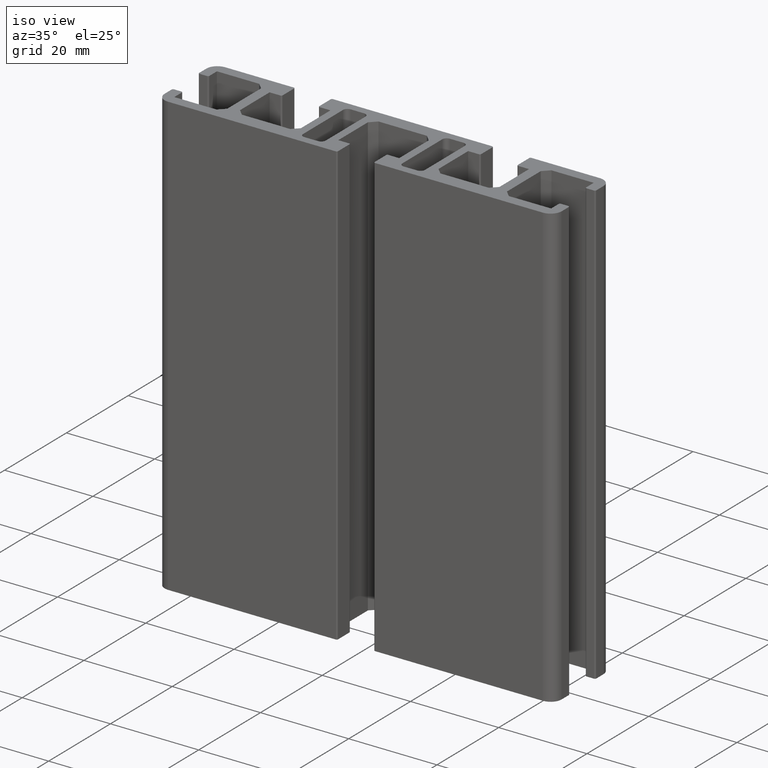
[diagram: clean part render]
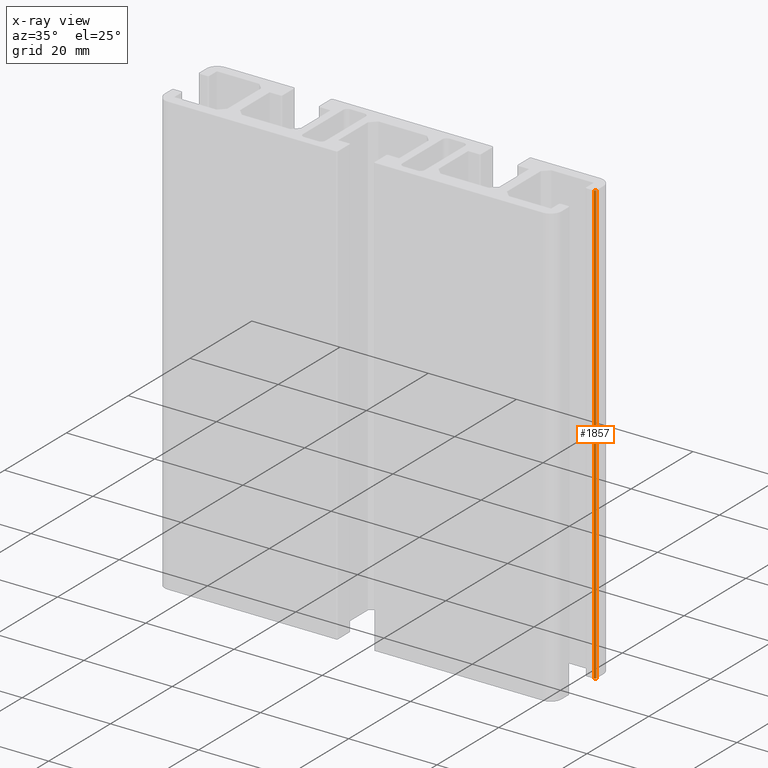
[diagram: x-ray — body ghosted, one internal face saturated and labeled with its STEP entity id]
A machine part, iso view, then the same camera in x-ray: the body is ghosted and one INTERNAL B-rep face — a face not visible from any outside direction — is saturated and labeled: STEP entity #1857.
In plain terms, the highlighted cylindrical surface (edge-blend (fillet) strip) has radius 0.3 mm, axis along (0, 0, 1).
Its self-contained STEP definition (entity closure, byte-faithful):
#95=FACE_OUTER_BOUND('',#191,.T.);
#191=EDGE_LOOP('',(#1297,#1298,#1299,#1300));
#305=LINE('',#2718,#523);
#306=LINE('',#2724,#524);
#523=VECTOR('',#2175,100.);
#524=VECTOR('',#2182,100.);
#725=CIRCLE('',#1966,0.299999999999391);
#726=CIRCLE('',#1967,0.299999999999391);
#803=VERTEX_POINT('',#2714);
#804=VERTEX_POINT('',#2716);
#805=VERTEX_POINT('',#2720);
#806=VERTEX_POINT('',#2722);
#1003=EDGE_CURVE('',#804,#803,#305,.T.);
#1004=EDGE_CURVE('',#803,#805,#725,.T.);
#1005=EDGE_CURVE('',#806,#804,#726,.T.);
#1006=EDGE_CURVE('',#805,#806,#306,.T.);
#1297=ORIENTED_EDGE('',*,*,#1004,.F.);
#1298=ORIENTED_EDGE('',*,*,#1003,.F.);
#1299=ORIENTED_EDGE('',*,*,#1005,.F.);
#1300=ORIENTED_EDGE('',*,*,#1006,.F.);
#1818=CYLINDRICAL_SURFACE('',#1965,0.299999999999391);
#1857=ADVANCED_FACE('',(#95),#1818,.T.);
#1965=AXIS2_PLACEMENT_3D('',#2719,#2176,#2177);
#1966=AXIS2_PLACEMENT_3D('',#2721,#2178,#2179);
#1967=AXIS2_PLACEMENT_3D('',#2723,#2180,#2181);
#2175=DIRECTION('',(0.,0.,1.));
#2176=DIRECTION('center_axis',(0.,0.,1.));
#2177=DIRECTION('ref_axis',(1.98359847066764E-12,1.,0.));
#2178=DIRECTION('center_axis',(0.,0.,1.));
#2179=DIRECTION('ref_axis',(1.98359847066764E-12,1.,0.));
#2180=DIRECTION('center_axis',(0.,0.,-1.));
#2181=DIRECTION('ref_axis',(1.98359847066764E-12,1.,0.));
#2182=DIRECTION('',(0.,0.,-1.));
#2714=CARTESIAN_POINT('',(44.7,4.1500000000012,100.));
#2716=CARTESIAN_POINT('',(44.7,4.1500000000012,0.));
#2718=CARTESIAN_POINT('',(44.7,4.1500000000012,0.));
#2719=CARTESIAN_POINT('Origin',(44.7000000000006,4.45000000000059,0.));
#2720=CARTESIAN_POINT('',(44.99999999999,4.45,100.));
#2721=CARTESIAN_POINT('Origin',(44.7000000000006,4.45000000000059,100.));
#2722=CARTESIAN_POINT('',(44.99999999999,4.45,0.));
#2723=CARTESIAN_POINT('Origin',(44.7000000000006,4.45000000000059,0.));
#2724=CARTESIAN_POINT('',(45.,4.45000000000059,0.));